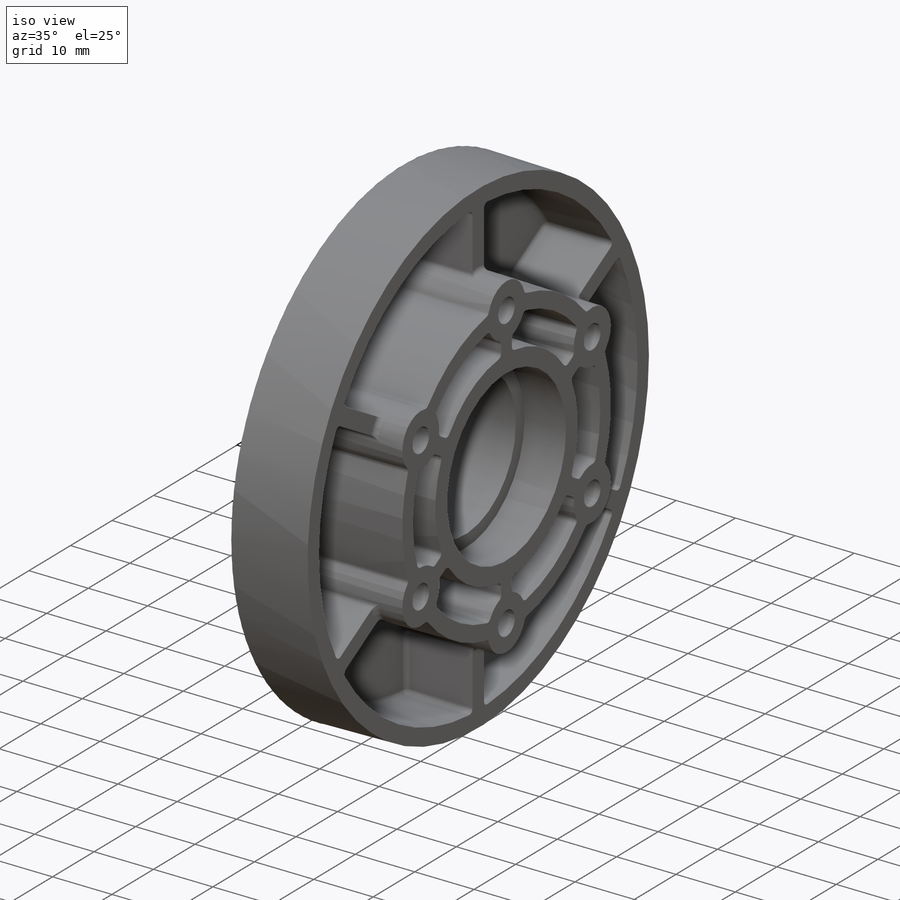
[diagram: iso view]
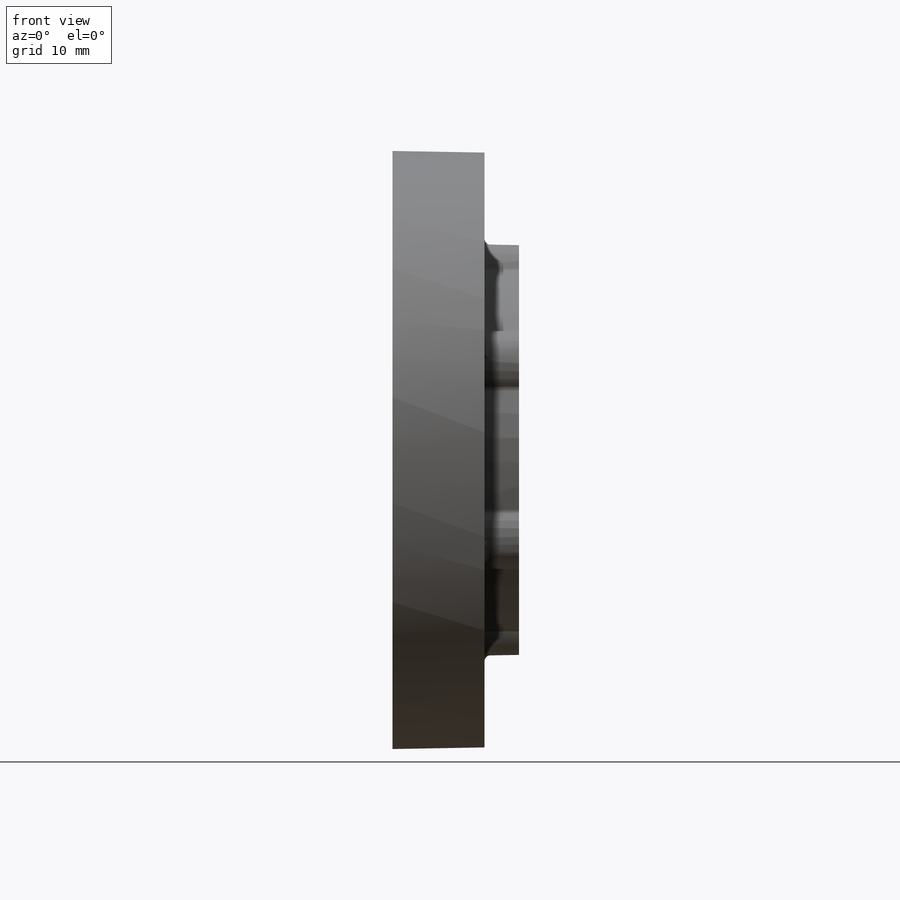
[diagram: front view]
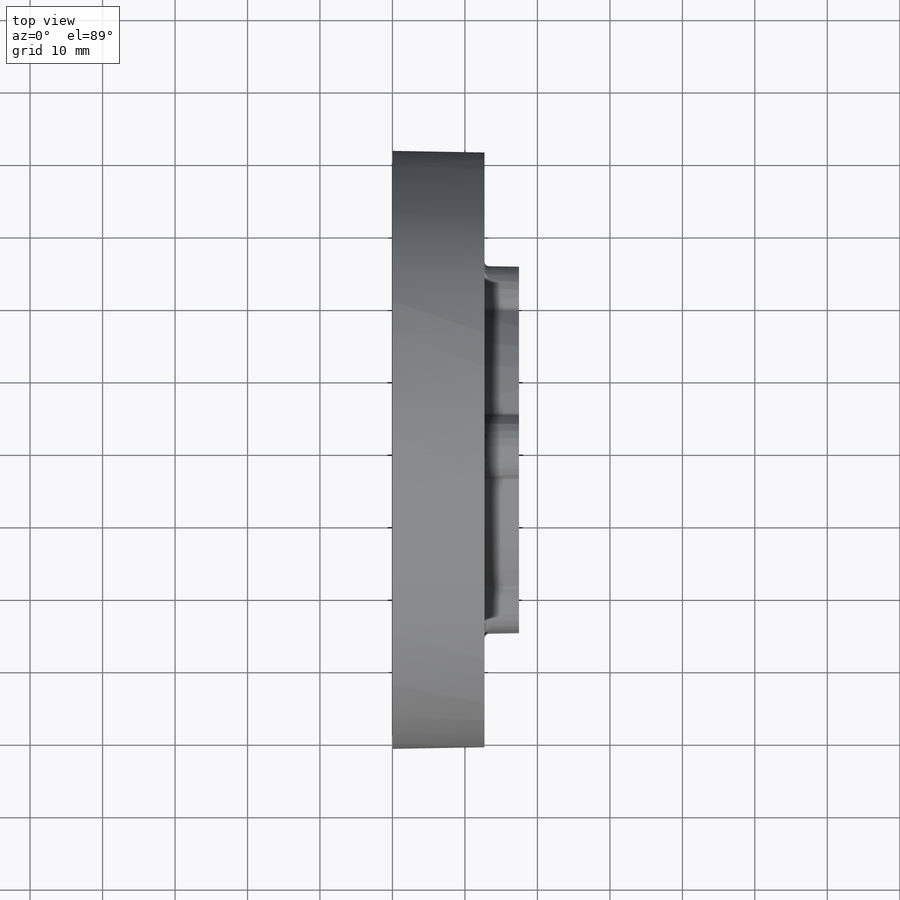
[diagram: top view]
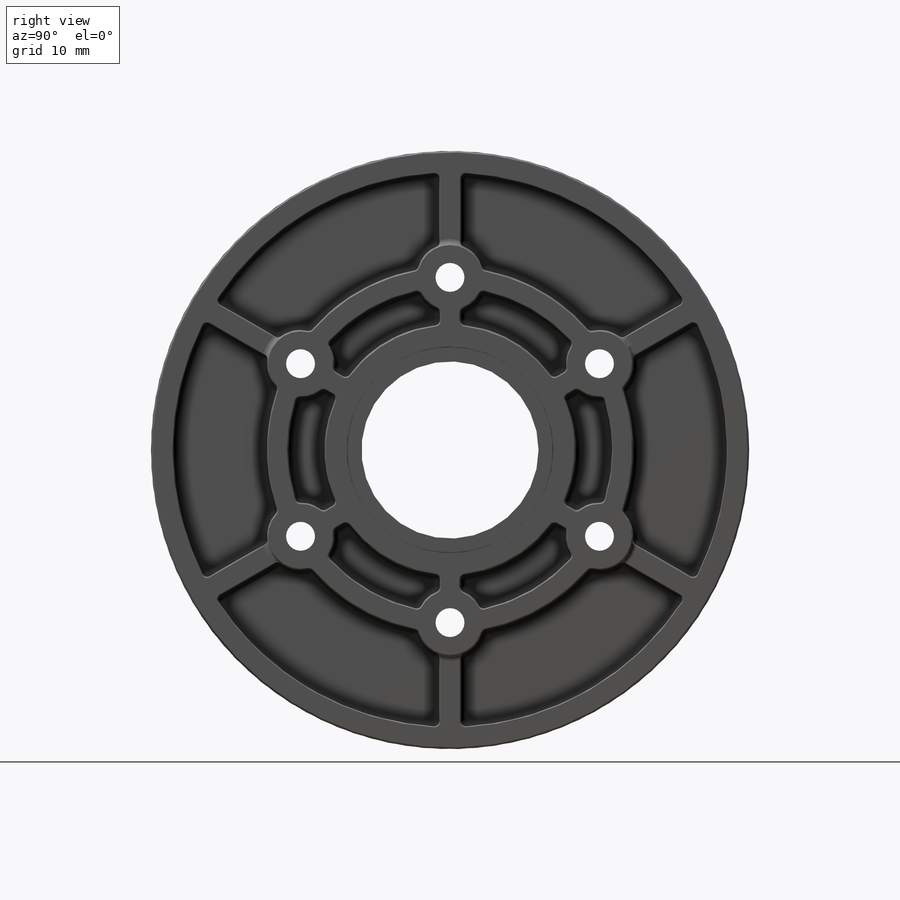
[diagram: right view]
SOLIDWORKS PART (.sldprt)
format: sldprt  version: not decoded by parser v0  size: 2,668,032 bytes
history: native  units: mm
features: sketch x11, extrude x8, fillet x8, cut_extrude x3, pattern_circular x2, material x1 (+13 scaffold rows collapsed)
feature tree (46):
  scaffold x13  (default folders/planes/origin — collapsed)
  material  "PC High Viscosity"
  sketch  "Sketch1"  dims[D1=34.925mm D2=24.4348mm]
  extrude  "Boss-Extrude1"  Depth=17.4625mm
  sketch  "Sketch3"  dims[D1=28.575mm]
  cut_extrude  "Cut-Extrude1"  Depth=6.985mm
  sketch  "Sketch4"  dims[D1=28.575mm]
  cut_extrude  "Cut-Extrude2"  Depth=6.985mm
  sketch  "Sketch5"  dims[D1=44.45mm D2=50.8mm]
  extrude  "Boss-Extrude2"  Depth=17.4625mm
  sketch  "Sketch6"
  extrude  "Boss-Extrude3"  Depth=1.5875mm
  sketch  "Sketch7"  dims[D2=9.525mm D1=23.8125mm D3=6.0]
  extrude  "Boss-Extrude4"  Depth=17.4625mm
  sketch  "Sketch8"  dims[D1=3.9878mm D2=6.0]
  cut_extrude  "Cut-Extrude3"  [1 undecoded]
  sketch  "Sketch9"  dims[D1=82.55mm D2=3.175mm]
  extrude  "Boss-Extrude5"  Depth=12.7mm
  sketch  "Sketch10"
  extrude  "Boss-Extrude6"  Depth=1.5875mm
  sketch  "Sketch12"  dims[D1=1.5875mm D2=1.5875mm]
  extrude  "Boss-Extrude12"  Depth=17.4625mm
  pattern_circular  "CirPattern1"  Count=6 Angle=360deg
  sketch  "Sketch11"  dims[c1.D1=~55.141031mm c1.D2=~71.412994mm c1.D5=3.175mm c2.D1=2.54mm c2.D2=3.556mm c2.D3=2.54mm c2.D4=2.54mm c3.D1=2.54mm]
  extrude  "Boss-Extrude7"  Depth=1.5875mm
  pattern_circular  "CirPattern2"  Count=6 Angle=360deg
  fillet  "Fillet5"  Radius=0.79375mm
  fillet  "Fillet6"  Radius=0.79375mm
  fillet  "Fillet2"  Radius=0.79375mm
  fillet  "Fillet7"  Radius=0.79375mm
  fillet  "Fillet3"  Radius=0.79375mm
  fillet  "Fillet8"  Radius=0.79375mm
  fillet  "Fillet9"  Radius=0.79375mm
  fillet  "Fillet10"  Radius=0.79375mm
decode coverage: 29 of 32 modeling features carry decoded parameters
note: ~ marks probable driven/reference dimensions
note: 1 parameter value undecoded
note: suppression state not decoded; provenance and decode notes live in map.json
